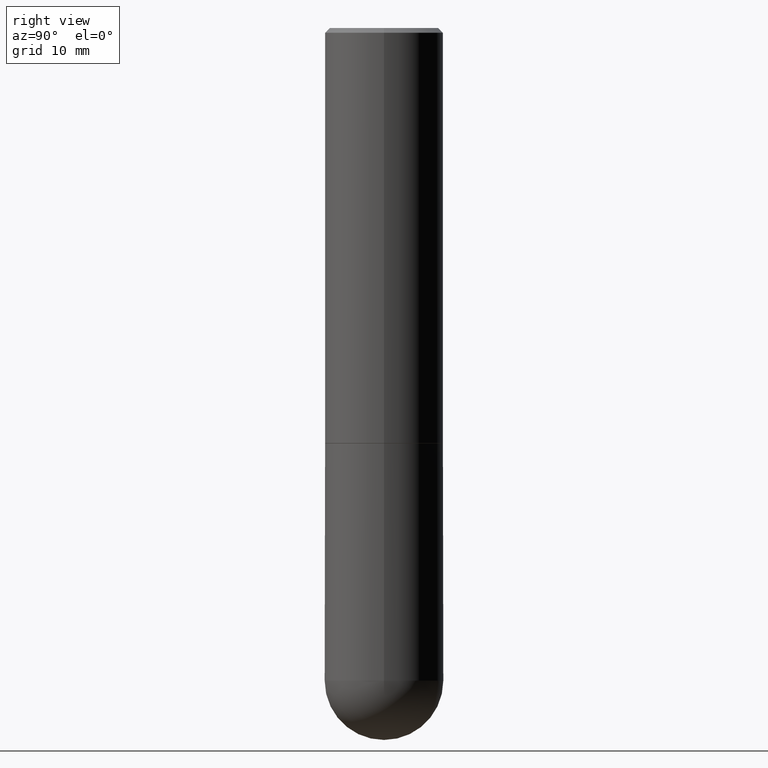
[diagram: clean part render]
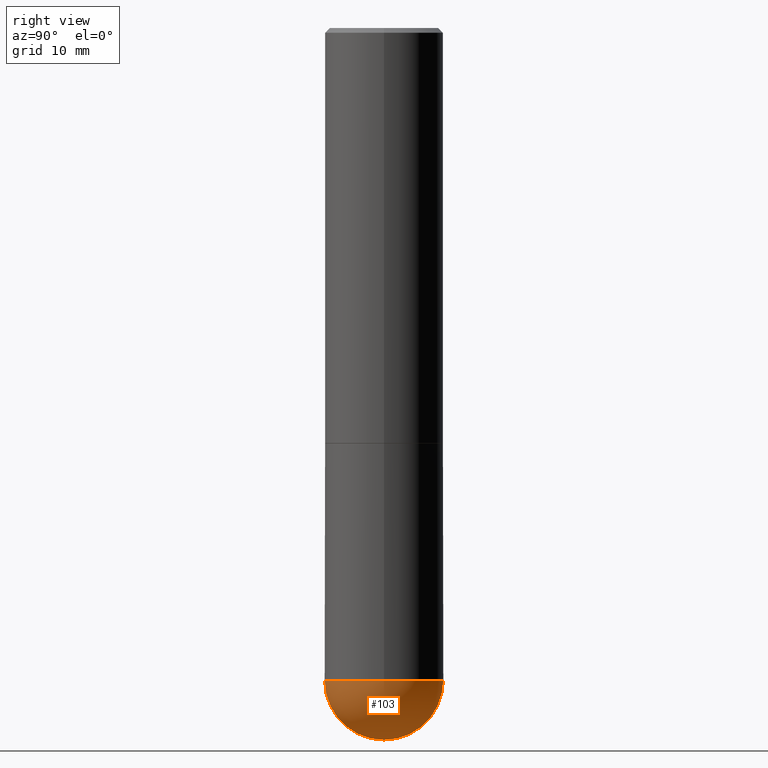
[diagram: same view with one face highlighted and labeled with its STEP entity id]
A machine part, right view. The second image highlights one B-rep face of the part: STEP entity #103.
In plain terms, the highlighted spherical surface has radius 6.35 mm.
Its self-contained STEP definition (entity closure, byte-faithful):
#9 = CARTESIAN_POINT ( 'NONE',  ( 6.725039217009124520E-29, -9.601573681818649859E-15, -2.750000000000000000 ) ) ;
#21 = CARTESIAN_POINT ( 'NONE',  ( 1.745740669421632745E-15, 0.2499999999999902300, -2.750000000000000888 ) ) ;
#46 = FACE_OUTER_BOUND ( 'NONE', #255, .T. ) ;
#54 = ORIENTED_EDGE ( 'NONE', *, *, #341, .T. ) ;
#60 = CIRCLE ( 'NONE', #295, 0.2500000000000000000 ) ;
#65 = EDGE_CURVE ( 'NONE', #342, #93, #230, .T. ) ;
#85 = CARTESIAN_POINT ( 'NONE',  ( 6.393919439095240515E-29, -1.007575604995870173E-14, -2.750000000000000444 ) ) ;
#93 = VERTEX_POINT ( 'NONE', #203 ) ;
#103 = ADVANCED_FACE ( 'NONE', ( #46 ), #236, .T. ) ;
#110 = DIRECTION ( 'NONE',  ( 6.982962677686265922E-15, 1.000000000000000000, -4.370956789862818783E-15 ) ) ;
#111 = DIRECTION ( 'NONE',  ( 1.000000000000000000, -6.982962677686265922E-15, 4.883557194083112340E-29 ) ) ;
#116 = AXIS2_PLACEMENT_3D ( 'NONE', #302, #248, #208 ) ;
#120 = ORIENTED_EDGE ( 'NONE', *, *, #351, .F. ) ;
#152 = DIRECTION ( 'NONE',  ( -1.000000000000000000, 7.105427357601001070E-15, -4.926315508542082329E-29 ) ) ;
#167 = DIRECTION ( 'NONE',  ( -1.000000000000000000, 6.982962677686265922E-15, -4.883557194083113462E-29 ) ) ;
#199 = AXIS2_PLACEMENT_3D ( 'NONE', #394, #167, #110 ) ;
#201 = CARTESIAN_POINT ( 'NONE',  ( 7.015976219256266741E-29, -1.093331829968014633E-14, -3.000000000000000888 ) ) ;
#203 = CARTESIAN_POINT ( 'NONE',  ( -1.776356839400184989E-15, -0.2500000000000098810, -2.749999999999998668 ) ) ;
#208 = DIRECTION ( 'NONE',  ( 1.000000000000000000, -6.982962677686262766E-15, 0.000000000000000000 ) ) ;
#230 = CIRCLE ( 'NONE', #313, 0.2500000000000001110 ) ;
#235 = ORIENTED_EDGE ( 'NONE', *, *, #65, .F. ) ;
#236 = SPHERICAL_SURFACE ( 'NONE', #199, 0.2500000000000001110 ) ;
#248 = DIRECTION ( 'NONE',  ( -2.445468806185136597E-29, 3.491481338843145583E-15, 1.000000000000000000 ) ) ;
#252 = CARTESIAN_POINT ( 'NONE',  ( 0.2500000000000000000, -9.601573681818646704E-15, -2.750000000000000000 ) ) ;
#255 = EDGE_LOOP ( 'NONE', ( #235, #54, #120, #361 ) ) ;
#260 = CARTESIAN_POINT ( 'NONE',  ( 6.393919439095240515E-29, -1.007575604995870173E-14, -2.750000000000000444 ) ) ;
#269 = AXIS2_PLACEMENT_3D ( 'NONE', #85, #111, #362 ) ;
#270 = DIRECTION ( 'NONE',  ( -2.445468806185136597E-29, 3.491481338843145583E-15, 1.000000000000000000 ) ) ;
#287 = DIRECTION ( 'NONE',  ( -7.105427357601001859E-15, -1.000000000000000000, 0.000000000000000000 ) ) ;
#295 = AXIS2_PLACEMENT_3D ( 'NONE', #9, #270, #384 ) ;
#302 = CARTESIAN_POINT ( 'NONE',  ( 6.725039217009124520E-29, -9.601573681818649859E-15, -2.750000000000000000 ) ) ;
#313 = AXIS2_PLACEMENT_3D ( 'NONE', #260, #152, #287 ) ;
#316 = CIRCLE ( 'NONE', #269, 0.2500000000000001110 ) ;
#341 = EDGE_CURVE ( 'NONE', #342, #357, #316, .T. ) ;
#342 = VERTEX_POINT ( 'NONE', #201 ) ;
#351 = EDGE_CURVE ( 'NONE', #405, #357, #359, .T. ) ;
#357 = VERTEX_POINT ( 'NONE', #21 ) ;
#359 = CIRCLE ( 'NONE', #116, 0.2500000000000000000 ) ;
#361 = ORIENTED_EDGE ( 'NONE', *, *, #406, .F. ) ;
#362 = DIRECTION ( 'NONE',  ( 6.982962677686266711E-15, 1.000000000000000000, 0.000000000000000000 ) ) ;
#384 = DIRECTION ( 'NONE',  ( 1.000000000000000000, -6.982962677686262766E-15, 0.000000000000000000 ) ) ;
#394 = CARTESIAN_POINT ( 'NONE',  ( 6.393919439095240515E-29, -1.007575604995870173E-14, -2.750000000000000444 ) ) ;
#405 = VERTEX_POINT ( 'NONE', #252 ) ;
#406 = EDGE_CURVE ( 'NONE', #93, #405, #60, .T. ) ;